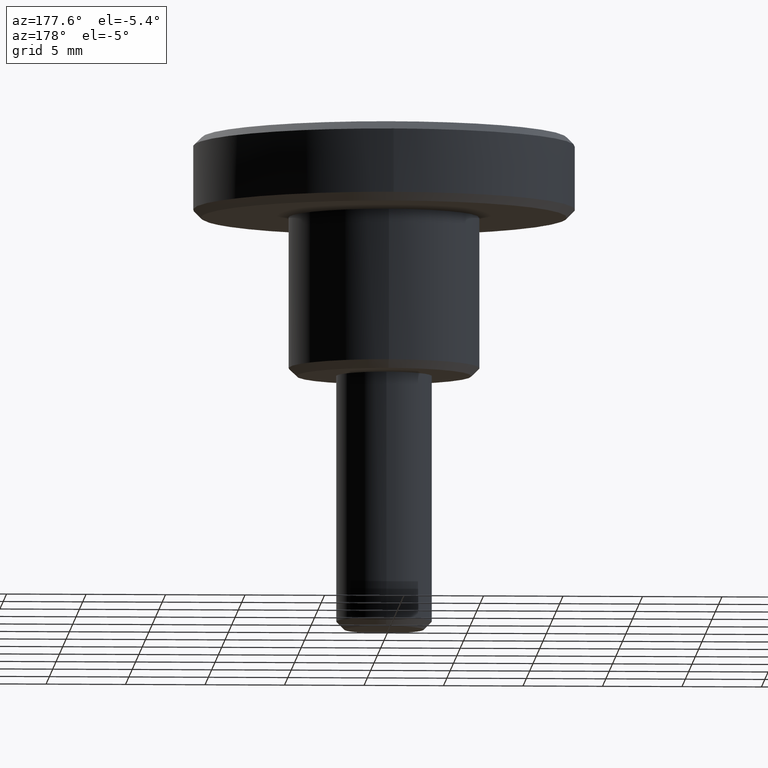
[diagram: clean part render]
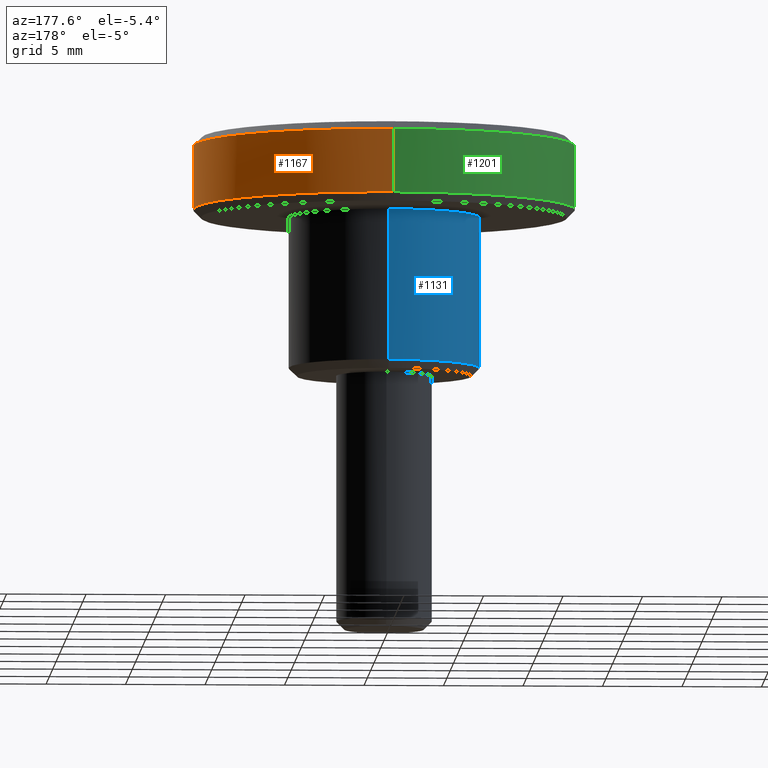
[diagram: same view with three faces highlighted in distinct colors, each labeled with its STEP entity id]
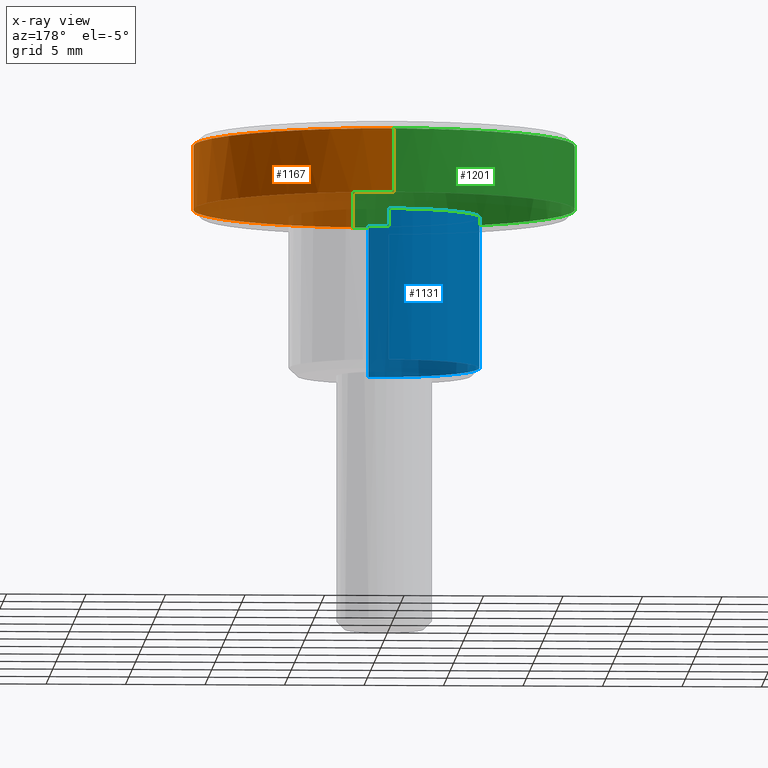
[diagram: x-ray of the same camera — body ghosted, the three highlighted faces saturated]
A machine part, auxiliary view with three faces highlighted in distinct colors.
The next image is the same camera in x-ray (body ghosted, the three faces saturated) — at least one of them is partly hidden behind the body in this view.
Their STEP definitions:

[orange] entity #1167 — the highlighted face is a freeform B-spline surface patch.
#351=CARTESIAN_POINT('',(1.489528086932241,-11.907195558912100,14.500000000000041));
#352=VERTEX_POINT('',#351);
#368=CARTESIAN_POINT('',(12.0,0.0,14.500000000000000));
#369=VERTEX_POINT('',#368);
#370=CARTESIAN_POINT('',(12.0,0.0,14.500000000000000));
#371=CARTESIAN_POINT('',(12.0,-10.592390318338282,14.499999999999996));
#372=CARTESIAN_POINT('',(1.489528086932241,-11.907195558912093,14.500000000000032));
#380=(BOUNDED_CURVE()B_SPLINE_CURVE(2,(#370,#371,#372),.UNSPECIFIED.,.F.,.U.)B_SPLINE_CURVE_WITH_KNOTS((3,3),(0.500000000000000,0.728526183458447),.UNSPECIFIED.)CURVE()GEOMETRIC_REPRESENTATION_ITEM()RATIONAL_B_SPLINE_CURVE((1.0,0.732264922174807,0.954005648456348))REPRESENTATION_ITEM(''));
#381=EDGE_CURVE('',#369,#352,#380,.T.);
#383=CARTESIAN_POINT('',(-0.104708695687644,11.999543161677140,14.500000000000020));
#384=VERTEX_POINT('',#383);
#385=CARTESIAN_POINT('',(-0.104708695687644,11.999543161677138,14.500000000000012));
#386=CARTESIAN_POINT('',(-0.052355344424153,12.000000000000002,14.500000000000004));
#387=CARTESIAN_POINT('',(0.0,12.0,14.500000000000000));
#388=CARTESIAN_POINT('',(12.0,12.0,14.500000000000000));
#389=CARTESIAN_POINT('',(12.0,0.0,14.500000000000000));
#397=(BOUNDED_CURVE()B_SPLINE_CURVE(2,(#385,#386,#387,#388,#389),.UNSPECIFIED.,.F.,.U.)B_SPLINE_CURVE_WITH_KNOTS((3,2,3),(0.248460248497209,0.250000000000000,0.500000000000000),.UNSPECIFIED.)CURVE()GEOMETRIC_REPRESENTATION_ITEM()RATIONAL_B_SPLINE_CURVE((0.996414358654318,0.998196068904699,1.0,0.707106781186548,1.0))REPRESENTATION_ITEM(''));
#398=EDGE_CURVE('',#384,#369,#397,.T.);
#562=CARTESIAN_POINT('',(-0.104708313807311,11.999543165009131,10.500000000000000));
#563=VERTEX_POINT('',#562);
#577=CARTESIAN_POINT('',(12.0,0.0,10.500000000000000));
#578=VERTEX_POINT('',#577);
#579=CARTESIAN_POINT('',(12.0,0.0,10.500000000000000));
#580=CARTESIAN_POINT('',(12.0,12.0,10.500000000000002));
#581=CARTESIAN_POINT('',(0.0,12.0,10.500000000000000));
#582=CARTESIAN_POINT('',(-0.052355153473084,12.000000000000002,10.499999999999996));
#583=CARTESIAN_POINT('',(-0.104708313807311,11.999543165009134,10.499999999999996));
#591=(BOUNDED_CURVE()B_SPLINE_CURVE(2,(#579,#580,#581,#582,#583),.UNSPECIFIED.,.F.,.U.)B_SPLINE_CURVE_WITH_KNOTS((3,2,3),(0.500000000000000,0.750000000000000,0.751539745897120),.UNSPECIFIED.)CURVE()GEOMETRIC_REPRESENTATION_ITEM()RATIONAL_B_SPLINE_CURVE((1.0,0.707106781186548,1.0,0.998196075472151,0.996414371627425))REPRESENTATION_ITEM(''));
#592=EDGE_CURVE('',#578,#563,#591,.T.);
#594=CARTESIAN_POINT('',(9.826393352528289,-6.887814869854642,10.500000000000149));
#595=VERTEX_POINT('',#594);
#596=CARTESIAN_POINT('',(9.826393352528289,-6.887814869854643,10.500000000000149));
#597=CARTESIAN_POINT('',(12.0,-3.786872943381589,10.499999999999998));
#598=CARTESIAN_POINT('',(12.0,0.0,10.500000000000000));
#606=(BOUNDED_CURVE()B_SPLINE_CURVE(2,(#596,#597,#598),.UNSPECIFIED.,.F.,.U.)B_SPLINE_CURVE_WITH_KNOTS((3,3),(0.401326273797048,0.500000000000000),.UNSPECIFIED.)CURVE()GEOMETRIC_REPRESENTATION_ITEM()RATIONAL_B_SPLINE_CURVE((0.860049271925832,0.884396538880400,1.0))REPRESENTATION_ITEM(''));
#607=EDGE_CURVE('',#595,#578,#606,.T.);
#645=CARTESIAN_POINT('',(1.489529790917478,-11.907195345753330,10.500000000000000));
#646=VERTEX_POINT('',#645);
#647=CARTESIAN_POINT('',(1.489529790917478,-11.907195345753331,10.499999999999998));
#648=CARTESIAN_POINT('',(6.771179646926980,-11.246487716688758,10.500000000000000));
#649=CARTESIAN_POINT('',(9.826393352528289,-6.887814869854643,10.500000000000149));
#657=(BOUNDED_CURVE()B_SPLINE_CURVE(2,(#647,#648,#649),.UNSPECIFIED.,.F.,.U.)B_SPLINE_CURVE_WITH_KNOTS((3,3),(0.271473840675717,0.401326273797047),.UNSPECIFIED.)CURVE()GEOMETRIC_REPRESENTATION_ITEM()RATIONAL_B_SPLINE_CURVE((0.954005601621221,0.828008809124190,0.860049271925832))REPRESENTATION_ITEM(''));
#658=EDGE_CURVE('',#646,#595,#657,.T.);
#1132=CARTESIAN_POINT('',(1.489536024957952,-11.907194565906458,10.399999999999999));
#1133=CARTESIAN_POINT('',(12.092793966029335,-10.580775097598652,10.399999999999999));
#1134=CARTESIAN_POINT('',(11.999543076770051,0.104718425980487,10.400000000000000));
#1135=CARTESIAN_POINT('',(11.894824650789566,12.104261502750537,10.399999999999999));
#1136=CARTESIAN_POINT('',(-0.104718425980487,11.999543076770051,10.400000000000000));
#1137=CARTESIAN_POINT('',(1.489536024957952,-11.907194565906458,14.602500000000010));
#1138=CARTESIAN_POINT('',(12.092793966029335,-10.580775097598652,14.602500000000004));
#1139=CARTESIAN_POINT('',(11.999543076770051,0.104718425980487,14.602499999999999));
#1140=CARTESIAN_POINT('',(11.894824650789566,12.104261502750537,14.602499999999997));
#1141=CARTESIAN_POINT('',(-0.104718425980487,11.999543076770051,14.602499999999999));
#1149=(BOUNDED_SURFACE()B_SPLINE_SURFACE(2,1,((#1132,#1137),(#1133,#1138),(#1134,#1139),(#1135,#1140),(#1136,#1141)),.UNSPECIFIED.,.F.,.F.,.U.)B_SPLINE_SURFACE_WITH_KNOTS((3,2,3),(2,2),(0.0,18.291670914395869,38.173921908304429),(0.0,4.202500000000006),.UNSPECIFIED.)GEOMETRIC_REPRESENTATION_ITEM()RATIONAL_B_SPLINE_SURFACE(((0.956886118190660,0.956886118190660),(0.730538238691624,0.730538238691624),(1.0,1.0),(0.707106781186548,0.707106781186548),(1.0,1.0)))REPRESENTATION_ITEM('')SURFACE());
#1150=ORIENTED_EDGE('',*,*,#381,.T.);
#1151=CARTESIAN_POINT('',(1.489529790917478,-11.907195345753330,10.500000000000000));
#1152=CARTESIAN_POINT('',(1.489528086932241,-11.907195558912100,14.500000000000041));
#1153=QUASI_UNIFORM_CURVE('',1,(#1151,#1152),.UNSPECIFIED.,.F.,.U.);
#1154=EDGE_CURVE('',#646,#352,#1153,.T.);
#1155=ORIENTED_EDGE('',*,*,#1154,.F.);
#1156=ORIENTED_EDGE('',*,*,#658,.T.);
#1157=ORIENTED_EDGE('',*,*,#607,.T.);
#1158=ORIENTED_EDGE('',*,*,#592,.T.);
#1159=CARTESIAN_POINT('',(-0.104708313807311,11.999543165009131,10.500000000000000));
#1160=CARTESIAN_POINT('',(-0.104708695687644,11.999543161677140,14.500000000000020));
#1161=QUASI_UNIFORM_CURVE('',1,(#1159,#1160),.UNSPECIFIED.,.F.,.U.);
#1162=EDGE_CURVE('',#563,#384,#1161,.T.);
#1163=ORIENTED_EDGE('',*,*,#1162,.T.);
#1164=ORIENTED_EDGE('',*,*,#398,.T.);
#1165=EDGE_LOOP('',(#1150,#1155,#1156,#1157,#1158,#1163,#1164));
#1166=FACE_OUTER_BOUND('',#1165,.T.);
#1167=ADVANCED_FACE('',(#1166),#1149,.T.);

[blue] entity #1131 — the highlighted face is a freeform B-spline surface patch.
#699=CARTESIAN_POINT('',(-2.425292591930901,-5.487982857437600,0.500000000000268));
#700=VERTEX_POINT('',#699);
#701=CARTESIAN_POINT('',(0.744766787611159,-5.953597436178384,0.499999999999956));
#702=VERTEX_POINT('',#701);
#703=CARTESIAN_POINT('',(-2.425292591930902,-5.487982857437600,0.500000000000268));
#704=CARTESIAN_POINT('',(-1.266693703515319,-6.0,0.499999999999945));
#705=CARTESIAN_POINT('',(0.0,-6.0,0.499999999999945));
#706=CARTESIAN_POINT('',(0.373828945597789,-6.0,0.499999999999945));
#707=CARTESIAN_POINT('',(0.744766787611159,-5.953597436178384,0.499999999999956));
#715=(BOUNDED_CURVE()B_SPLINE_CURVE(2,(#703,#704,#705,#706,#707),.UNSPECIFIED.,.F.,.U.)B_SPLINE_CURVE_WITH_KNOTS((3,2,3),(0.181361578459733,0.250000000000000,0.271473894274204),.UNSPECIFIED.)CURVE()GEOMETRIC_REPRESENTATION_ITEM()RATIONAL_B_SPLINE_CURVE((0.883326595751673,0.919585087123186,1.0,0.974841767942274,0.954005497607217))REPRESENTATION_ITEM(''));
#716=EDGE_CURVE('',#700,#702,#715,.T.);
#759=CARTESIAN_POINT('',(-0.052357741389686,5.999771551226409,0.499999999999591));
#760=VERTEX_POINT('',#759);
#817=CARTESIAN_POINT('',(-6.0,0.0,0.499999999999945));
#818=VERTEX_POINT('',#817);
#819=CARTESIAN_POINT('',(-6.0,0.0,0.499999999999945));
#820=CARTESIAN_POINT('',(-6.000000000000001,-3.908220015544268,0.499999999999945));
#821=CARTESIAN_POINT('',(-2.425292591930902,-5.487982857437600,0.500000000000268));
#829=(BOUNDED_CURVE()B_SPLINE_CURVE(2,(#819,#820,#821),.UNSPECIFIED.,.F.,.U.)B_SPLINE_CURVE_WITH_KNOTS((3,3),(0.0,0.181361578459733),.UNSPECIFIED.)CURVE()GEOMETRIC_REPRESENTATION_ITEM()RATIONAL_B_SPLINE_CURVE((1.0,0.787521694063361,0.883326595751673))REPRESENTATION_ITEM(''));
#830=EDGE_CURVE('',#818,#700,#829,.T.);
#832=CARTESIAN_POINT('',(-0.052357741389686,5.999771551226409,0.499999999999591));
#833=CARTESIAN_POINT('',(-6.000000000000001,5.947868722495268,0.499999999999945));
#834=CARTESIAN_POINT('',(-6.0,0.0,0.499999999999945));
#842=(BOUNDED_CURVE()B_SPLINE_CURVE(2,(#832,#833,#834),.UNSPECIFIED.,.F.,.U.)B_SPLINE_CURVE_WITH_KNOTS((3,3),(0.751539851131372,1.0),.UNSPECIFIED.)CURVE()GEOMETRIC_REPRESENTATION_ITEM()RATIONAL_B_SPLINE_CURVE((0.996414128085694,0.708910829003991,1.0))REPRESENTATION_ITEM(''));
#843=EDGE_CURVE('',#760,#818,#842,.T.);
#1025=CARTESIAN_POINT('',(-0.052355687551986,5.999771569148988,10.0));
#1026=VERTEX_POINT('',#1025);
#1027=CARTESIAN_POINT('',(-0.052357741389686,5.999771551226409,0.499999999999591));
#1028=CARTESIAN_POINT('',(-0.052355687551986,5.999771569148988,10.0));
#1029=QUASI_UNIFORM_CURVE('',1,(#1027,#1028),.UNSPECIFIED.,.F.,.U.);
#1030=EDGE_CURVE('',#760,#1026,#1029,.T.);
#1049=CARTESIAN_POINT('',(0.744759922427401,-5.953598294970821,10.0));
#1050=VERTEX_POINT('',#1049);
#1064=CARTESIAN_POINT('',(0.744766787611159,-5.953597436178384,0.499999999999956));
#1065=CARTESIAN_POINT('',(0.744759922427401,-5.953598294970821,10.0));
#1066=QUASI_UNIFORM_CURVE('',1,(#1064,#1065),.UNSPECIFIED.,.F.,.U.);
#1067=EDGE_CURVE('',#702,#1050,#1066,.T.);
#1072=CARTESIAN_POINT('',(-0.052359212990243,5.999771538385026,0.262499999999943));
#1073=CARTESIAN_POINT('',(-6.052130751375269,5.947412325394783,0.262499999999943));
#1074=CARTESIAN_POINT('',(-5.999771538385026,-0.052359212990243,0.262499999999943));
#1075=CARTESIAN_POINT('',(-5.947412325394783,-6.052130751375269,0.262499999999943));
#1076=CARTESIAN_POINT('',(0.052359212990243,-5.999771538385026,0.262499999999943));
#1077=CARTESIAN_POINT('',(0.399900953749042,-5.996738587561654,0.262499999999943));
#1078=CARTESIAN_POINT('',(0.744768012478976,-5.953597282953231,0.262499999999943));
#1079=CARTESIAN_POINT('',(-0.052359212990243,5.999771538385026,10.243437500000001));
#1080=CARTESIAN_POINT('',(-6.052130751375269,5.947412325394783,10.243437500000004));
#1081=CARTESIAN_POINT('',(-5.999771538385026,-0.052359212990243,10.243437500000001));
#1082=CARTESIAN_POINT('',(-5.947412325394783,-6.052130751375269,10.243437500000004));
#1083=CARTESIAN_POINT('',(0.052359212990243,-5.999771538385026,10.243437500000001));
#1084=CARTESIAN_POINT('',(0.399900953749042,-5.996738587561654,10.243437500000002));
#1085=CARTESIAN_POINT('',(0.744768012478976,-5.953597282953231,10.243437500000006));
#1093=(BOUNDED_SURFACE()B_SPLINE_SURFACE(2,1,((#1072,#1079),(#1073,#1080),(#1074,#1081),(#1075,#1082),(#1076,#1083),(#1077,#1084),(#1078,#1085)),.UNSPECIFIED.,.F.,.F.,.U.)B_SPLINE_SURFACE_WITH_KNOTS((3,2,2,3),(2,2),(0.0,9.941125496954278,19.882250993908560,20.677541033664902),(0.0,9.980937500000064),.UNSPECIFIED.)GEOMETRIC_REPRESENTATION_ITEM()RATIONAL_B_SPLINE_SURFACE(((1.0,1.0),(0.707106781186548,0.707106781186548),(1.0,1.0),(0.707106781186548,0.707106781186548),(1.0,1.0),(0.976568542494924,0.976568542494924),(0.956886118190660,0.956886118190660)))REPRESENTATION_ITEM('')SURFACE());
#1094=ORIENTED_EDGE('',*,*,#830,.T.);
#1095=ORIENTED_EDGE('',*,*,#716,.T.);
#1096=ORIENTED_EDGE('',*,*,#1067,.T.);
#1097=CARTESIAN_POINT('',(-6.0,0.0,10.0));
#1098=VERTEX_POINT('',#1097);
#1099=CARTESIAN_POINT('',(0.744759922427401,-5.953598294970821,10.000000000000002));
#1100=CARTESIAN_POINT('',(0.373825472824070,-6.0,10.0));
#1101=CARTESIAN_POINT('',(0.0,-6.0,10.0));
#1102=CARTESIAN_POINT('',(-6.0,-6.0,10.000000000000002));
#1103=CARTESIAN_POINT('',(-6.0,0.0,10.0));
#1111=(BOUNDED_CURVE()B_SPLINE_CURVE(2,(#1099,#1100,#1101,#1102,#1103),.UNSPECIFIED.,.F.,.U.)B_SPLINE_CURVE_WITH_KNOTS((3,2,3),(0.728526300193999,0.750000000000000,1.0),.UNSPECIFIED.)CURVE()GEOMETRIC_REPRESENTATION_ITEM()RATIONAL_B_SPLINE_CURVE((0.954005874995296,0.974841995775946,1.0,0.707106781186548,1.0))REPRESENTATION_ITEM(''));
#1112=EDGE_CURVE('',#1050,#1098,#1111,.T.);
#1113=ORIENTED_EDGE('',*,*,#1112,.T.);
#1114=CARTESIAN_POINT('',(-6.0,0.0,10.0));
#1115=CARTESIAN_POINT('',(-6.0,5.947870758643496,10.0));
#1116=CARTESIAN_POINT('',(-0.052355687551986,5.999771569148988,9.999999999999998));
#1124=(BOUNDED_CURVE()B_SPLINE_CURVE(2,(#1114,#1115,#1116),.UNSPECIFIED.,.F.,.U.)B_SPLINE_CURVE_WITH_KNOTS((3,3),(0.0,0.248460209165715),.UNSPECIFIED.)CURVE()GEOMETRIC_REPRESENTATION_ITEM()RATIONAL_B_SPLINE_CURVE((1.0,0.708910758361561,0.996414267630128))REPRESENTATION_ITEM(''));
#1125=EDGE_CURVE('',#1098,#1026,#1124,.T.);
#1126=ORIENTED_EDGE('',*,*,#1125,.T.);
#1127=ORIENTED_EDGE('',*,*,#1030,.F.);
#1128=ORIENTED_EDGE('',*,*,#843,.T.);
#1129=EDGE_LOOP('',(#1094,#1095,#1096,#1113,#1126,#1127,#1128));
#1130=FACE_OUTER_BOUND('',#1129,.T.);
#1131=ADVANCED_FACE('',(#1130),#1093,.T.);

[green] entity #1201 — the highlighted face is a freeform B-spline surface patch.
#271=CARTESIAN_POINT('',(-11.690617838141559,-2.707296541305387,14.499999999998430));
#272=VERTEX_POINT('',#271);
#273=CARTESIAN_POINT('',(-12.0,0.0,14.500000000000000));
#274=VERTEX_POINT('',#273);
#275=CARTESIAN_POINT('',(-11.690617838141559,-2.707296541305388,14.499999999998428));
#276=CARTESIAN_POINT('',(-12.000000000000005,-1.371325928170661,14.500000000000004));
#277=CARTESIAN_POINT('',(-12.0,0.0,14.500000000000000));
#285=(BOUNDED_CURVE()B_SPLINE_CURVE(2,(#275,#276,#277),.UNSPECIFIED.,.F.,.U.)B_SPLINE_CURVE_WITH_KNOTS((3,3),(0.961422971784239,1.0),.UNSPECIFIED.)CURVE()GEOMETRIC_REPRESENTATION_ITEM()RATIONAL_B_SPLINE_CURVE((0.923556557442184,0.954804200134513,1.0))REPRESENTATION_ITEM(''));
#286=EDGE_CURVE('',#272,#274,#285,.T.);
#344=CARTESIAN_POINT('',(-0.104718426021702,-11.999543076775300,14.499999999994399));
#345=VERTEX_POINT('',#344);
#351=CARTESIAN_POINT('',(1.489528086932241,-11.907195558912100,14.500000000000041));
#352=VERTEX_POINT('',#351);
#353=CARTESIAN_POINT('',(1.489528086932241,-11.907195558912093,14.500000000000032));
#354=CARTESIAN_POINT('',(0.747655114927344,-12.000000000000004,14.500000000000004));
#355=CARTESIAN_POINT('',(0.0,-12.0,14.500000000000000));
#356=CARTESIAN_POINT('',(-0.052360209889577,-12.000000000000002,14.500000000000000));
#357=CARTESIAN_POINT('',(-0.104718426021702,-11.999543076775302,14.499999999994401));
#365=(BOUNDED_CURVE()B_SPLINE_CURVE(2,(#353,#354,#355,#356,#357),.UNSPECIFIED.,.F.,.U.)B_SPLINE_CURVE_WITH_KNOTS((3,2,3),(0.728526183458447,0.750000000000000,0.751539894336195),.UNSPECIFIED.)CURVE()GEOMETRIC_REPRESENTATION_ITEM()RATIONAL_B_SPLINE_CURVE((0.954005648456348,0.974841859011740,1.0,0.998195901564957,0.996414028097609))REPRESENTATION_ITEM(''));
#366=EDGE_CURVE('',#352,#345,#365,.T.);
#383=CARTESIAN_POINT('',(-0.104708695687644,11.999543161677140,14.500000000000020));
#384=VERTEX_POINT('',#383);
#400=CARTESIAN_POINT('',(-12.0,0.0,14.500000000000000));
#401=CARTESIAN_POINT('',(-12.0,11.895744173626527,14.499999999999996));
#402=CARTESIAN_POINT('',(-0.104708695687644,11.999543161677138,14.500000000000012));
#410=(BOUNDED_CURVE()B_SPLINE_CURVE(2,(#400,#401,#402),.UNSPECIFIED.,.F.,.U.)B_SPLINE_CURVE_WITH_KNOTS((3,3),(0.0,0.248460248497209),.UNSPECIFIED.)CURVE()GEOMETRIC_REPRESENTATION_ITEM()RATIONAL_B_SPLINE_CURVE((1.0,0.708910712281848,0.996414358654318))REPRESENTATION_ITEM(''));
#411=EDGE_CURVE('',#274,#384,#410,.T.);
#430=CARTESIAN_POINT('',(-0.104718426021702,-11.999543076775298,14.499999999994403));
#431=CARTESIAN_POINT('',(-9.557837021802170,-11.917046960509088,14.500000000000000));
#432=CARTESIAN_POINT('',(-11.690617838141552,-2.707296541305387,14.499999999998428));
#440=(BOUNDED_CURVE()B_SPLINE_CURVE(2,(#430,#431,#432),.UNSPECIFIED.,.F.,.U.)B_SPLINE_CURVE_WITH_KNOTS((3,3),(0.751539894336196,0.961422971784239),.UNSPECIFIED.)CURVE()GEOMETRIC_REPRESENTATION_ITEM()RATIONAL_B_SPLINE_CURVE((0.996414028097609,0.753549905437217,0.923556557442185))REPRESENTATION_ITEM(''));
#441=EDGE_CURVE('',#345,#272,#440,.T.);
#538=CARTESIAN_POINT('',(0.104718425980838,-11.999543076770090,10.500000000000060));
#539=VERTEX_POINT('',#538);
#545=CARTESIAN_POINT('',(-12.0,0.0,10.500000000000000));
#546=VERTEX_POINT('',#545);
#547=CARTESIAN_POINT('',(-12.0,0.0,10.500000000000000));
#548=CARTESIAN_POINT('',(-12.0,-12.0,10.500000000000002));
#549=CARTESIAN_POINT('',(0.0,-12.0,10.500000000000000));
#550=CARTESIAN_POINT('',(0.052360209848767,-12.0,10.499999999999998));
#551=CARTESIAN_POINT('',(0.104718425980838,-11.999543076770081,10.500000000000068));
#559=(BOUNDED_CURVE()B_SPLINE_CURVE(2,(#547,#548,#549,#550,#551),.UNSPECIFIED.,.F.,.U.)B_SPLINE_CURVE_WITH_KNOTS((3,2,3),(0.0,0.250000000000000,0.251539894334997),.UNSPECIFIED.)CURVE()GEOMETRIC_REPRESENTATION_ITEM()RATIONAL_B_SPLINE_CURVE((1.0,0.707106781186548,1.0,0.998195901566360,0.996414028100382))REPRESENTATION_ITEM(''));
#560=EDGE_CURVE('',#546,#539,#559,.T.);
#562=CARTESIAN_POINT('',(-0.104708313807311,11.999543165009131,10.500000000000000));
#563=VERTEX_POINT('',#562);
#564=CARTESIAN_POINT('',(-0.104708313807311,11.999543165009134,10.499999999999996));
#565=CARTESIAN_POINT('',(-12.000000000000002,11.895744552217918,10.500000000000000));
#566=CARTESIAN_POINT('',(-12.0,0.0,10.500000000000000));
#574=(BOUNDED_CURVE()B_SPLINE_CURVE(2,(#564,#565,#566),.UNSPECIFIED.,.F.,.U.)B_SPLINE_CURVE_WITH_KNOTS((3,3),(0.751539745897120,1.0),.UNSPECIFIED.)CURVE()GEOMETRIC_REPRESENTATION_ITEM()RATIONAL_B_SPLINE_CURVE((0.996414371627425,0.708910705714397,1.0))REPRESENTATION_ITEM(''));
#575=EDGE_CURVE('',#563,#546,#574,.T.);
#645=CARTESIAN_POINT('',(1.489529790917478,-11.907195345753330,10.500000000000000));
#646=VERTEX_POINT('',#645);
#660=CARTESIAN_POINT('',(0.104718425980838,-11.999543076770085,10.500000000000059));
#661=CARTESIAN_POINT('',(0.799798755763836,-11.993477202628043,10.499999999999996));
#662=CARTESIAN_POINT('',(1.489529790917478,-11.907195345753331,10.499999999999998));
#670=(BOUNDED_CURVE()B_SPLINE_CURVE(2,(#660,#661,#662),.UNSPECIFIED.,.F.,.U.)B_SPLINE_CURVE_WITH_KNOTS((3,3),(0.251539894334997,0.271473840675717),.UNSPECIFIED.)CURVE()GEOMETRIC_REPRESENTATION_ITEM()RATIONAL_B_SPLINE_CURVE((0.996414028100382,0.973347659681787,0.954005601621221))REPRESENTATION_ITEM(''));
#671=EDGE_CURVE('',#539,#646,#670,.T.);
#1151=CARTESIAN_POINT('',(1.489529790917478,-11.907195345753330,10.500000000000000));
#1152=CARTESIAN_POINT('',(1.489528086932241,-11.907195558912100,14.500000000000041));
#1153=QUASI_UNIFORM_CURVE('',1,(#1151,#1152),.UNSPECIFIED.,.F.,.U.);
#1154=EDGE_CURVE('',#646,#352,#1153,.T.);
#1159=CARTESIAN_POINT('',(-0.104708313807311,11.999543165009131,10.500000000000000));
#1160=CARTESIAN_POINT('',(-0.104708695687644,11.999543161677140,14.500000000000020));
#1161=QUASI_UNIFORM_CURVE('',1,(#1159,#1160),.UNSPECIFIED.,.F.,.U.);
#1162=EDGE_CURVE('',#563,#384,#1161,.T.);
#1168=CARTESIAN_POINT('',(-0.104718425980487,11.999543076770051,10.400000000000000));
#1169=CARTESIAN_POINT('',(-12.104261502750537,11.894824650789566,10.399999999999999));
#1170=CARTESIAN_POINT('',(-11.999543076770051,-0.104718425980487,10.400000000000000));
#1171=CARTESIAN_POINT('',(-11.894824650789566,-12.104261502750537,10.399999999999999));
#1172=CARTESIAN_POINT('',(0.104718425980487,-11.999543076770051,10.400000000000000));
#1173=CARTESIAN_POINT('',(0.799801907498083,-11.993477175123314,10.400000000000002));
#1174=CARTESIAN_POINT('',(1.489536024957952,-11.907194565906458,10.399999999999999));
#1175=CARTESIAN_POINT('',(-0.104718425980487,11.999543076770051,14.602499999999999));
#1176=CARTESIAN_POINT('',(-12.104261502750537,11.894824650789566,14.602499999999997));
#1177=CARTESIAN_POINT('',(-11.999543076770051,-0.104718425980487,14.602499999999999));
#1178=CARTESIAN_POINT('',(-11.894824650789566,-12.104261502750537,14.602499999999997));
#1179=CARTESIAN_POINT('',(0.104718425980487,-11.999543076770051,14.602499999999999));
#1180=CARTESIAN_POINT('',(0.799801907498083,-11.993477175123314,14.602500000000004));
#1181=CARTESIAN_POINT('',(1.489536024957952,-11.907194565906458,14.602500000000010));
#1189=(BOUNDED_SURFACE()B_SPLINE_SURFACE(2,1,((#1168,#1175),(#1169,#1176),(#1170,#1177),(#1171,#1178),(#1172,#1179),(#1173,#1180),(#1174,#1181)),.UNSPECIFIED.,.F.,.F.,.U.)B_SPLINE_SURFACE_WITH_KNOTS((3,2,2,3),(2,2),(0.0,19.882250993908560,39.764501987817113,41.355082067329803),(0.0,4.202500000000007),.UNSPECIFIED.)GEOMETRIC_REPRESENTATION_ITEM()RATIONAL_B_SPLINE_SURFACE(((1.0,1.0),(0.707106781186548,0.707106781186548),(1.0,1.0),(0.707106781186548,0.707106781186548),(1.0,1.0),(0.976568542494924,0.976568542494924),(0.956886118190660,0.956886118190660)))REPRESENTATION_ITEM('')SURFACE());
#1190=ORIENTED_EDGE('',*,*,#366,.T.);
#1191=ORIENTED_EDGE('',*,*,#441,.T.);
#1192=ORIENTED_EDGE('',*,*,#286,.T.);
#1193=ORIENTED_EDGE('',*,*,#411,.T.);
#1194=ORIENTED_EDGE('',*,*,#1162,.F.);
#1195=ORIENTED_EDGE('',*,*,#575,.T.);
#1196=ORIENTED_EDGE('',*,*,#560,.T.);
#1197=ORIENTED_EDGE('',*,*,#671,.T.);
#1198=ORIENTED_EDGE('',*,*,#1154,.T.);
#1199=EDGE_LOOP('',(#1190,#1191,#1192,#1193,#1194,#1195,#1196,#1197,#1198));
#1200=FACE_OUTER_BOUND('',#1199,.T.);
#1201=ADVANCED_FACE('',(#1200),#1189,.T.);